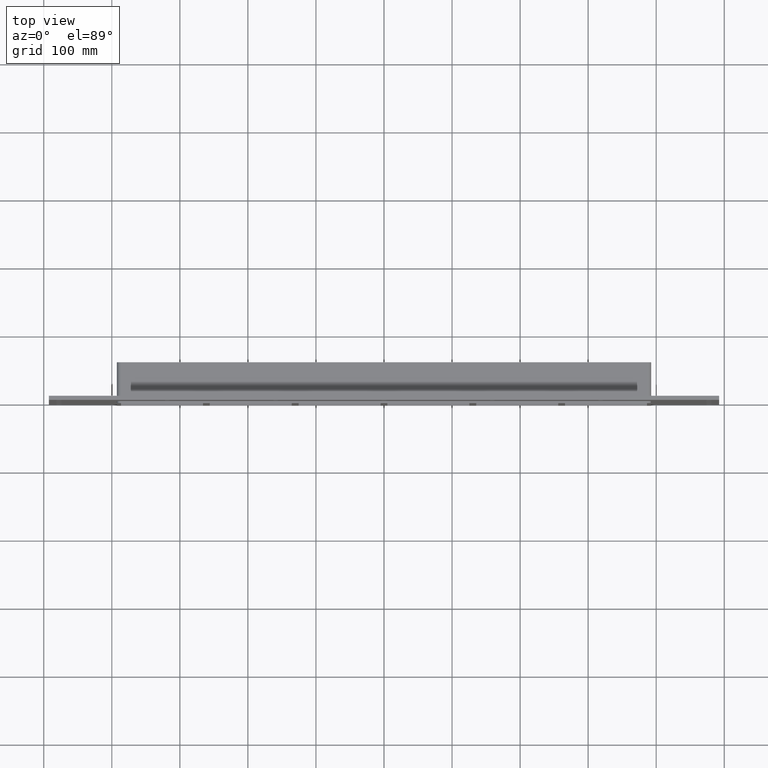
[diagram: clean part render]
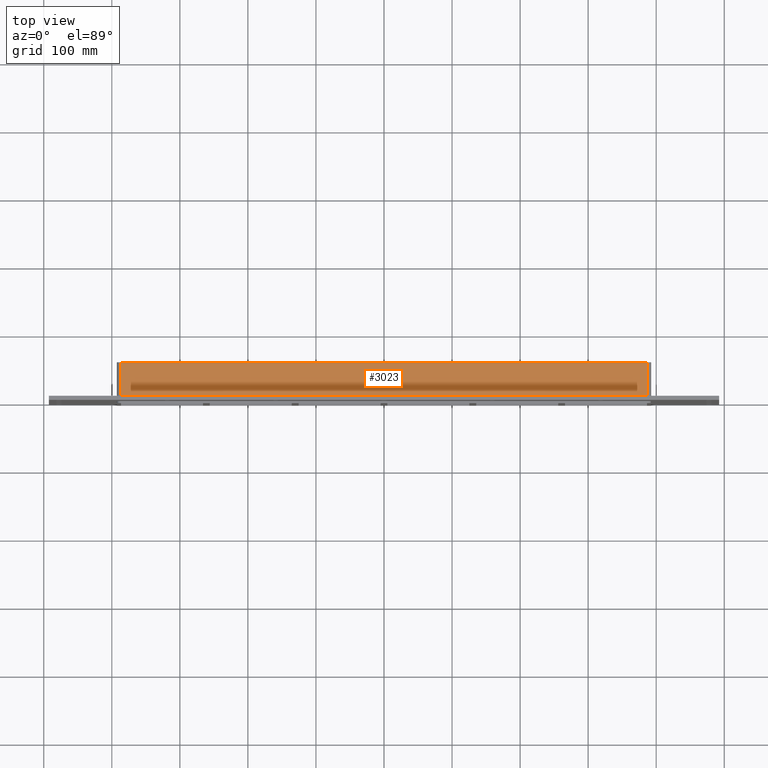
[diagram: same view with one face highlighted and labeled with its STEP entity id]
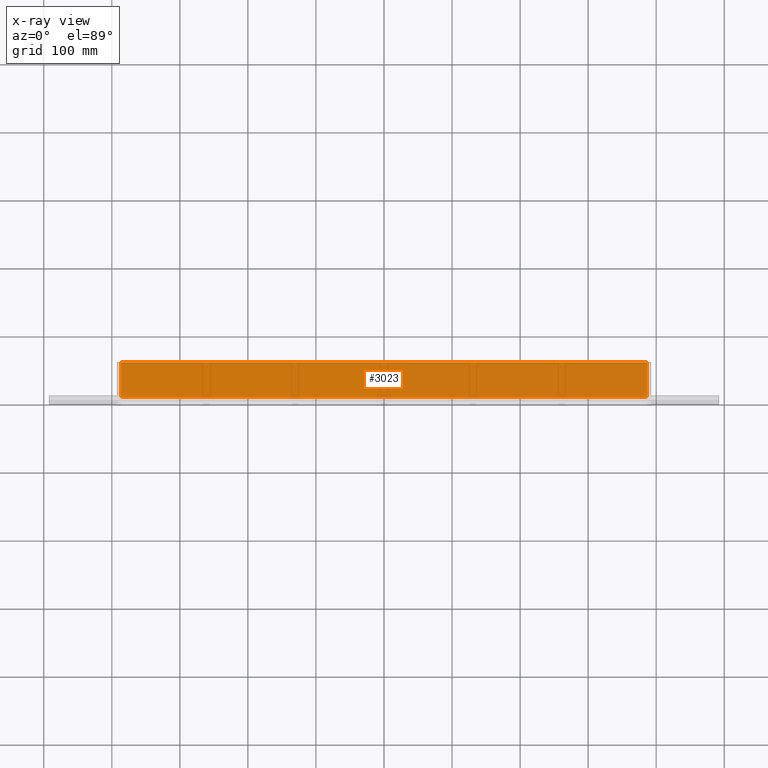
[diagram: x-ray of the same camera — body ghosted, the highlighted face saturated]
A machine part, top view. The second image highlights one B-rep face of the part: STEP entity #3023.
The next image is the same camera in x-ray: the body ghosted, the highlighted face saturated — about 0% of this face is hidden behind the body in this view.
In plain terms, the highlighted planar face has unit normal (0, 0, 1).
Its self-contained STEP definition (entity closure, byte-faithful):
#1774=CARTESIAN_POINT('',(-386.50000000000023,57.0,113.0));
#1775=VERTEX_POINT('',#1774);
#1783=CARTESIAN_POINT('',(386.49999999999989,57.0,113.0));
#1784=VERTEX_POINT('',#1783);
#1785=CARTESIAN_POINT('',(-386.50000000000017,57.0,113.0));
#1786=DIRECTION('',(1.0,0.0,0.0));
#1787=VECTOR('',#1786,773.0);
#1788=LINE('',#1785,#1787);
#1789=EDGE_CURVE('',#1775,#1784,#1788,.T.);
#2473=CARTESIAN_POINT('',(386.49999999999989,6.000000000000001,113.0));
#2474=VERTEX_POINT('',#2473);
#2482=CARTESIAN_POINT('',(-386.50000000000023,6.000000000000001,113.0));
#2483=VERTEX_POINT('',#2482);
#2484=CARTESIAN_POINT('',(-386.50000000000017,6.000000000000001,113.0));
#2485=DIRECTION('',(1.0,0.0,0.0));
#2486=VECTOR('',#2485,773.00000000000011);
#2487=LINE('',#2484,#2486);
#2488=EDGE_CURVE('',#2483,#2474,#2487,.T.);
#2787=CARTESIAN_POINT('',(386.49999999999989,57.0,113.0));
#2788=DIRECTION('',(0.0,-1.0,0.0));
#2789=VECTOR('',#2788,51.0);
#2790=LINE('',#2787,#2789);
#2791=EDGE_CURVE('',#1784,#2474,#2790,.T.);
#3001=CARTESIAN_POINT('',(-386.50000000000023,6.000000000000001,113.0));
#3002=DIRECTION('',(0.0,1.0,0.0));
#3003=VECTOR('',#3002,51.0);
#3004=LINE('',#3001,#3003);
#3005=EDGE_CURVE('',#2483,#1775,#3004,.T.);
#3012=CARTESIAN_POINT('',(-392.50000000000011,0.0,113.0));
#3013=DIRECTION('',(0.0,0.0,1.0));
#3014=DIRECTION('',(1.0,0.0,0.0));
#3015=AXIS2_PLACEMENT_3D('',#3012,#3013,#3014);
#3016=PLANE('',#3015);
#3017=ORIENTED_EDGE('',*,*,#2488,.T.);
#3018=ORIENTED_EDGE('',*,*,#2791,.F.);
#3019=ORIENTED_EDGE('',*,*,#1789,.F.);
#3020=ORIENTED_EDGE('',*,*,#3005,.F.);
#3021=EDGE_LOOP('',(#3017,#3018,#3019,#3020));
#3022=FACE_OUTER_BOUND('',#3021,.T.);
#3023=ADVANCED_FACE('',(#3022),#3016,.T.);